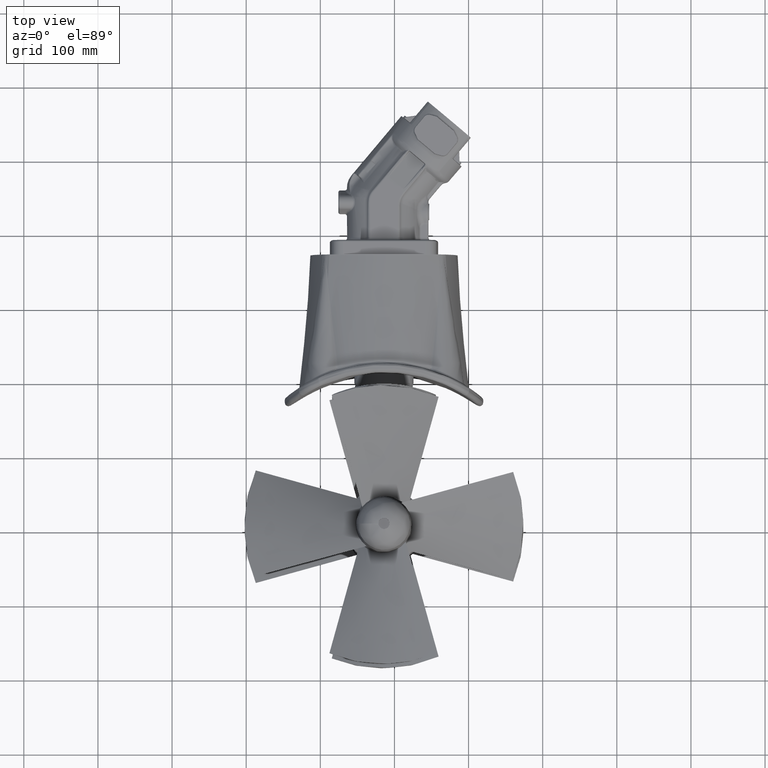
[diagram: clean part render]
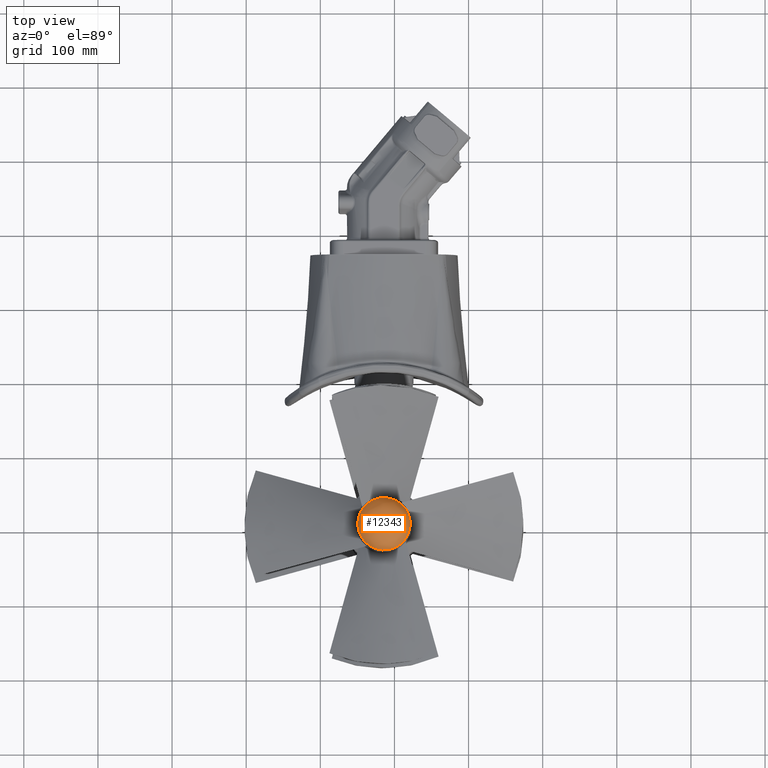
[diagram: same view with one face highlighted and labeled with its STEP entity id]
A machine part, top view. The second image highlights one B-rep face of the part: STEP entity #12343.
In plain terms, the highlighted face is a freeform B-spline surface patch.
Its self-contained STEP definition (entity closure, byte-faithful):
#13=(
BOUNDED_CURVE()
B_SPLINE_CURVE(2,(#50529,#50530,#50531),.UNSPECIFIED.,.F.,.F.)
B_SPLINE_CURVE_WITH_KNOTS((3,3),(0.0523598775598044,1.58489707526995),
 .UNSPECIFIED.)
CURVE()
GEOMETRIC_REPRESENTATION_ITEM()
RATIONAL_B_SPLINE_CURVE((1.,0.720503225553017,1.))
REPRESENTATION_ITEM('')
);
#516=(
BOUNDED_SURFACE()
B_SPLINE_SURFACE(2,2,((#50501,#50502,#50503,#50504,#50505,#50506,#50507,
#50508,#50509),(#50510,#50511,#50512,#50513,#50514,#50515,#50516,#50517,
#50518),(#50519,#50520,#50521,#50522,#50523,#50524,#50525,#50526,#50527)),
 .UNSPECIFIED.,.F.,.T.,.F.)
B_SPLINE_SURFACE_WITH_KNOTS((3,3),(3,2,2,2,3),(0.0523598775598044,1.58489707526995),
(-3.14159265358979,-1.5707963267949,0.,1.5707963267949,3.14159265358979),
 .UNSPECIFIED.)
GEOMETRIC_REPRESENTATION_ITEM()
RATIONAL_B_SPLINE_SURFACE(((1.,0.707106781186548,1.,0.707106781186548,1.,
0.707106781186548,1.,0.707106781186548,1.),(0.720503225553017,0.509472716655319,
0.720503225553017,0.509472716655319,0.720503225553017,0.509472716655319,
0.720503225553017,0.509472716655319,0.720503225553017),(1.,0.707106781186548,
1.,0.707106781186548,1.,0.707106781186548,1.,0.707106781186548,1.)))
REPRESENTATION_ITEM('')
SURFACE()
);
#2886=FACE_OUTER_BOUND('',#3690,.T.);
#3690=EDGE_LOOP('',(#10454,#10455,#10456,#10457,#10458,#10459));
#4421=CIRCLE('',#13393,35.3500699387986);
#4422=CIRCLE('',#13394,35.3500699387986);
#4423=CIRCLE('',#13395,7.5);
#4424=CIRCLE('',#13396,7.5);
#5379=VERTEX_POINT('',#50497);
#5380=VERTEX_POINT('',#50498);
#5381=VERTEX_POINT('',#50528);
#5382=VERTEX_POINT('',#50532);
#7093=EDGE_CURVE('',#5379,#5380,#4421,.T.);
#7094=EDGE_CURVE('',#5380,#5379,#4422,.T.);
#7095=EDGE_CURVE('',#5380,#5381,#13,.T.);
#7096=EDGE_CURVE('',#5382,#5381,#4423,.T.);
#7097=EDGE_CURVE('',#5381,#5382,#4424,.T.);
#10454=ORIENTED_EDGE('',*,*,#7093,.T.);
#10455=ORIENTED_EDGE('',*,*,#7095,.T.);
#10456=ORIENTED_EDGE('',*,*,#7096,.F.);
#10457=ORIENTED_EDGE('',*,*,#7097,.F.);
#10458=ORIENTED_EDGE('',*,*,#7095,.F.);
#10459=ORIENTED_EDGE('',*,*,#7094,.T.);
#12343=ADVANCED_FACE('',(#2886),#516,.F.);
#13393=AXIS2_PLACEMENT_3D('',#50499,#15718,#15719);
#13394=AXIS2_PLACEMENT_3D('',#50500,#15720,#15721);
#13395=AXIS2_PLACEMENT_3D('',#50533,#15722,#15723);
#13396=AXIS2_PLACEMENT_3D('',#50534,#15724,#15725);
#15718=DIRECTION('center_axis',(3.33066907387547E-16,-2.45596953381234E-17,
1.));
#15719=DIRECTION('ref_axis',(-8.48066286701273E-18,1.,2.45596953381234E-17));
#15720=DIRECTION('center_axis',(3.33066907387547E-16,-2.45596953381234E-17,
1.));
#15721=DIRECTION('ref_axis',(-8.48066286701273E-18,1.,2.45596953381234E-17));
#15722=DIRECTION('center_axis',(3.33066907387547E-16,-2.45596953381234E-17,
1.));
#15723=DIRECTION('ref_axis',(-8.48066286701273E-18,1.,2.45596953381234E-17));
#15724=DIRECTION('center_axis',(3.33066907387547E-16,-2.45596953381234E-17,
1.));
#15725=DIRECTION('ref_axis',(-8.48066286701273E-18,1.,2.45596953381234E-17));
#50497=CARTESIAN_POINT('',(-514.080233911989,538.927282575629,225.541972679111));
#50498=CARTESIAN_POINT('',(-549.430303850787,503.57721263683,225.54197267911));
#50499=CARTESIAN_POINT('Origin',(-514.080233911989,503.57721263683,225.541972679111));
#50500=CARTESIAN_POINT('Origin',(-514.080233911989,503.57721263683,225.541972679111));
#50501=CARTESIAN_POINT('Ctrl Pts',(-549.430303850787,503.57721263683,225.54197267911));
#50502=CARTESIAN_POINT('Ctrl Pts',(-549.430303850787,468.227142698031,225.54197267911));
#50503=CARTESIAN_POINT('Ctrl Pts',(-514.080233911989,468.227142698031,225.54197267911));
#50504=CARTESIAN_POINT('Ctrl Pts',(-478.73016397319,468.227142698031,225.541972679109));
#50505=CARTESIAN_POINT('Ctrl Pts',(-478.73016397319,503.57721263683,225.54197267911));
#50506=CARTESIAN_POINT('Ctrl Pts',(-478.73016397319,538.927282575628,225.541972679111));
#50507=CARTESIAN_POINT('Ctrl Pts',(-514.080233911989,538.927282575628,225.541972679111));
#50508=CARTESIAN_POINT('Ctrl Pts',(-549.430303850787,538.927282575628,225.541972679111));
#50509=CARTESIAN_POINT('Ctrl Pts',(-549.430303850787,503.57721263683,225.54197267911));
#50510=CARTESIAN_POINT('Ctrl Pts',(-548.045101966007,503.577212636829,251.973199182719));
#50511=CARTESIAN_POINT('Ctrl Pts',(-548.045101966007,469.612344582811,251.973199182718));
#50512=CARTESIAN_POINT('Ctrl Pts',(-514.080233911988,469.612344582811,251.973199182718));
#50513=CARTESIAN_POINT('Ctrl Pts',(-480.11536585797,469.612344582811,251.973199182718));
#50514=CARTESIAN_POINT('Ctrl Pts',(-480.11536585797,503.577212636829,251.973199182719));
#50515=CARTESIAN_POINT('Ctrl Pts',(-480.11536585797,537.542080690847,251.973199182719));
#50516=CARTESIAN_POINT('Ctrl Pts',(-514.080233911988,537.542080690847,251.973199182719));
#50517=CARTESIAN_POINT('Ctrl Pts',(-548.045101966007,537.542080690847,251.973199182719));
#50518=CARTESIAN_POINT('Ctrl Pts',(-548.045101966007,503.577212636829,251.973199182719));
#50519=CARTESIAN_POINT('Ctrl Pts',(-521.580233911987,503.577212636829,251.6));
#50520=CARTESIAN_POINT('Ctrl Pts',(-521.580233911987,496.07721263683,251.6));
#50521=CARTESIAN_POINT('Ctrl Pts',(-514.080233911988,496.07721263683,251.6));
#50522=CARTESIAN_POINT('Ctrl Pts',(-506.58023391199,496.07721263683,251.6));
#50523=CARTESIAN_POINT('Ctrl Pts',(-506.58023391199,503.577212636829,251.6));
#50524=CARTESIAN_POINT('Ctrl Pts',(-506.58023391199,511.077212636828,251.6));
#50525=CARTESIAN_POINT('Ctrl Pts',(-514.080233911988,511.077212636828,251.6));
#50526=CARTESIAN_POINT('Ctrl Pts',(-521.580233911987,511.077212636828,251.6));
#50527=CARTESIAN_POINT('Ctrl Pts',(-521.580233911987,503.577212636829,251.6));
#50528=CARTESIAN_POINT('',(-521.580233911987,503.577212636829,251.6));
#50529=CARTESIAN_POINT('Ctrl Pts',(-549.430303850787,503.57721263683,225.54197267911));
#50530=CARTESIAN_POINT('Ctrl Pts',(-548.045101966007,503.577212636829,251.973199182719));
#50531=CARTESIAN_POINT('Ctrl Pts',(-521.580233911987,503.577212636829,251.6));
#50532=CARTESIAN_POINT('',(-514.080233911989,511.07721263683,251.6));
#50533=CARTESIAN_POINT('Origin',(-514.080233911989,503.57721263683,251.6));
#50534=CARTESIAN_POINT('Origin',(-514.080233911989,503.57721263683,251.6));